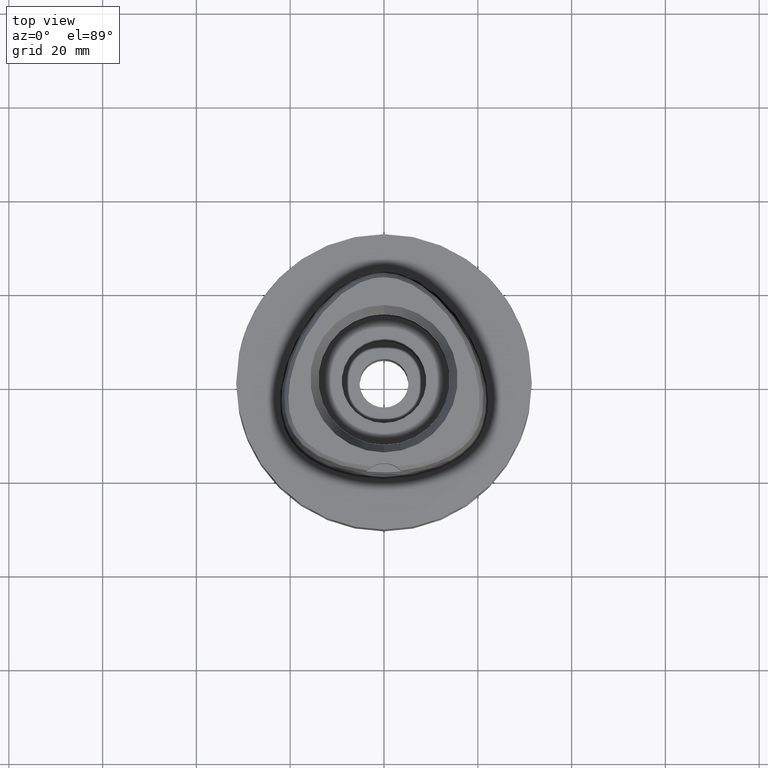
[diagram: clean part render]
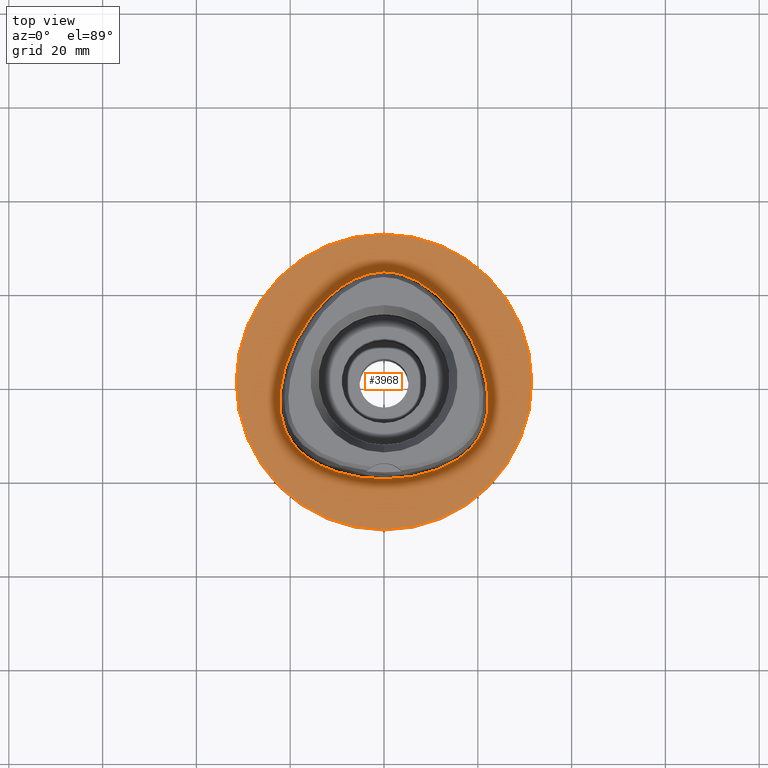
[diagram: same view with one face highlighted and labeled with its STEP entity id]
A machine part, top view. The second image highlights one B-rep face of the part: STEP entity #3968.
In plain terms, the highlighted planar face has unit normal (0, 0, -1).
Its self-contained STEP definition (entity closure, byte-faithful):
#9 = VERTEX_POINT ( 'NONE', #2866 ) ;
#31 = AXIS2_PLACEMENT_3D ( 'NONE', #2829, #2016, #115 ) ;
#85 = DIRECTION ( 'NONE',  ( 0.0000000000000000000, 0.0000000000000000000, -1.000000000000000000 ) ) ;
#89 = CARTESIAN_POINT ( 'NONE',  ( -1.131694588379999952E-11, -20.67499999999999716, 1.488068927338999721E-13 ) ) ;
#98 = EDGE_LOOP ( 'NONE', ( #3876, #235 ) ) ;
#115 = DIRECTION ( 'NONE',  ( 0.0000000000000000000, -1.000000000000000000, 0.0000000000000000000 ) ) ;
#136 = CARTESIAN_POINT ( 'NONE',  ( -22.05732873356693347, -6.847636717361496927, 3.885600670697989673E-07 ) ) ;
#160 = CARTESIAN_POINT ( 'NONE',  ( -2.564517724960374778, 23.29328124043638581, 3.885600670697989673E-07 ) ) ;
#194 = CARTESIAN_POINT ( 'NONE',  ( 14.40795639674408868, 15.64093750605300848, -3.727169554164789372E-07 ) ) ;
#216 = CARTESIAN_POINT ( 'NONE',  ( 19.64947366619033886, -12.82525391174291940, -3.727169554164789372E-07 ) ) ;
#235 = ORIENTED_EDGE ( 'NONE', *, *, #3842, .F. ) ;
#297 = EDGE_CURVE ( 'NONE', #9, #627, #1246, .T. ) ;
#439 = DIRECTION ( 'NONE',  ( 0.0000000000000000000, 1.000000000000000000, 0.0000000000000000000 ) ) ;
#506 = CARTESIAN_POINT ( 'NONE',  ( -20.74942739960216542, 4.657187496688254491, 3.885600670697989673E-07 ) ) ;
#594 = CARTESIAN_POINT ( 'NONE',  ( -1.131694588379999952E-11, -20.67499999999999716, 1.488068927338999721E-13 ) ) ;
#627 = VERTEX_POINT ( 'NONE', #2481 ) ;
#641 = CARTESIAN_POINT ( 'NONE',  ( 20.74942741761695686, 4.657187503176337451, -3.727169554164789372E-07 ) ) ;
#663 = EDGE_CURVE ( 'NONE', #627, #9, #2689, .T. ) ;
#904 = PLANE ( 'NONE',  #31 ) ;
#917 = CARTESIAN_POINT ( 'NONE',  ( -5.098437013657345140, 22.52602538157566059, 3.885600670697989673E-07 ) ) ;
#949 = CARTESIAN_POINT ( 'NONE',  ( -6.341471017485521777, -20.29812499039378793, 3.885600670697989673E-07 ) ) ;
#963 = CARTESIAN_POINT ( 'NONE',  ( 22.24453908789068279, -4.100468749944812252, -3.727169554164789372E-07 ) ) ;
#979 = CARTESIAN_POINT ( 'NONE',  ( 0.8548392429687943217, 23.47500000932142683, -3.727169554164789372E-07 ) ) ;
#985 = CARTESIAN_POINT ( 'NONE',  ( -14.40795638211908880, 15.64093749369347641, 3.885600670697989673E-07 ) ) ;
#1026 = CARTESIAN_POINT ( 'NONE',  ( 18.56841065820153602, -14.16937988923751668, -3.727169554164789372E-07 ) ) ;
#1061 = EDGE_CURVE ( 'NONE', #2338, #3992, #2026, .T. ) ;
#1246 = CIRCLE ( 'NONE', #4455, 31.50000000000000000 ) ;
#1287 = CARTESIAN_POINT ( 'NONE',  ( -18.56841064434376065, -14.16937987611206751, 3.885600670697989673E-07 ) ) ;
#1305 = CARTESIAN_POINT ( 'NONE',  ( -19.64947365076566754, -12.82525390053001679, 3.885600670697989673E-07 ) ) ;
#1311 = ORIENTED_EDGE ( 'NONE', *, *, #663, .F. ) ;
#1348 = CARTESIAN_POINT ( 'NONE',  ( 10.74572891661287422, 19.17433594467898317, -3.727169554164789372E-07 ) ) ;
#1441 = CARTESIAN_POINT ( 'NONE',  ( 20.93173253064228589, -10.60431641004089087, -3.727169554164789372E-07 ) ) ;
#1661 = CARTESIAN_POINT ( 'NONE',  ( -21.55524825074957107, -8.996025387848247235, 3.885600670697989673E-07 ) ) ;
#1875 = AXIS2_PLACEMENT_3D ( 'NONE', #3031, #3754, #4542 ) ;
#2016 = DIRECTION ( 'NONE',  ( 0.0000000000000000000, 0.0000000000000000000, -1.000000000000000000 ) ) ;
#2026 = B_SPLINE_CURVE_WITH_KNOTS ( 'NONE', 3,
 ( #3610, #3631, #160, #917, #3586, #2109, #985, #3204, #506, #2512, #4774, #136, #1661, #4753, #4438, #1305, #1287, #2821, #4366, #4060, #949, #2450, #3990 ),
 .UNSPECIFIED., .F., .F.,
 ( 4, 1, 1, 1, 1, 1, 1, 1, 1, 1, 1, 1, 1, 1, 1, 1, 1, 1, 1, 1, 4 ),
 ( 0.0000000000000000000, 0.04166666666755999837, 0.08333333333417000666, 0.1250000000007999990, 0.1666666666674000152, 0.2500000000006000200, 0.3333333333337999971, 0.4166666666671000052, 0.5000000000004000134, 0.5416666666670000296, 0.5833333333336000459, 0.6250000000001999512, 0.6458333333335000148, 0.6666666666668999985, 0.6875000000001000311, 0.7083333333333999837, 0.7500000000001000311, 0.7916666666667000474, 0.8333333333333000637, 0.9166666666666000163, 1.000000000000000000 ),
 .UNSPECIFIED. ) ;
#2109 = CARTESIAN_POINT ( 'NONE',  ( -10.74572890431623406, 19.17433593002142800, 3.885600670697989673E-07 ) ) ;
#2131 = CARTESIAN_POINT ( 'NONE',  ( 6.341471020867912145, -20.29812500922345819, -3.727169554164789372E-07 ) ) ;
#2181 = CARTESIAN_POINT ( 'NONE',  ( 5.098437020761553029, 22.52602539931565673, -3.727169554164789372E-07 ) ) ;
#2338 = VERTEX_POINT ( 'NONE', #2792 ) ;
#2450 = CARTESIAN_POINT ( 'NONE',  ( -2.113823672487484373, -20.67499999028822799, 3.885600670697989673E-07 ) ) ;
#2481 = CARTESIAN_POINT ( 'NONE',  ( 0.0000000000000000000, -31.50000000000000000, 0.0000000000000000000 ) ) ;
#2489 = CARTESIAN_POINT ( 'NONE',  ( 7.571159439071173836, 21.31457032055926248, -3.727169554164789372E-07 ) ) ;
#2512 = CARTESIAN_POINT ( 'NONE',  ( -21.97832646824619829, -0.2810937516994880814, 3.885600670697989673E-07 ) ) ;
#2557 = CARTESIAN_POINT ( 'NONE',  ( 21.55524826905910274, -8.996025393288993754, -3.727169554164789372E-07 ) ) ;
#2578 = CARTESIAN_POINT ( 'NONE',  ( 20.34961799365099466, -11.74885742654150533, -3.727169554164789372E-07 ) ) ;
#2689 = CIRCLE ( 'NONE', #1875, 31.50000000000000000 ) ;
#2792 = CARTESIAN_POINT ( 'NONE',  ( 5.792640471420000553E-11, 23.47499999999000053, 1.459943277381999819E-13 ) ) ;
#2821 = CARTESIAN_POINT ( 'NONE',  ( -16.95889171990959809, -15.67838866420374266, 3.885600670697989673E-07 ) ) ;
#2829 = CARTESIAN_POINT ( 'NONE',  ( 0.0000000000000000000, 1.224646799146999965E-14, 0.0000000000000000000 ) ) ;
#2866 = CARTESIAN_POINT ( 'NONE',  ( 0.0000000000000000000, 31.50000000000000000, 0.0000000000000000000 ) ) ;
#2882 = B_SPLINE_CURVE_WITH_KNOTS ( 'NONE', 3,
 ( #594, #3366, #2131, #4915, #3668, #4079, #1026, #216, #2578, #1441, #2557, #4100, #963, #4817, #641, #3643, #194, #1348, #2489, #2181, #4889, #979, #3711 ),
 .UNSPECIFIED., .F., .F.,
 ( 4, 1, 1, 1, 1, 1, 1, 1, 1, 1, 1, 1, 1, 1, 1, 1, 1, 1, 1, 1, 4 ),
 ( 0.0000000000000000000, 0.08333333333344000726, 0.1666666666668000230, 0.2083333333333000081, 0.2500000000000000000, 0.2916666666666999919, 0.3125000000000000000, 0.3333333333333000081, 0.3541666666666999919, 0.3750000000000000000, 0.4166666666666000163, 0.4583333333332000326, 0.4999999999998999689, 0.5833333333332000326, 0.6666666666664999852, 0.7499999999998000488, 0.8333333333329999704, 0.8749999999997000177, 0.9166666666664000651, 0.9583333333329999704, 1.000000000000000000 ),
 .UNSPECIFIED. ) ;
#3031 = CARTESIAN_POINT ( 'NONE',  ( 0.0000000000000000000, 1.275653338331999844E-14, 0.0000000000000000000 ) ) ;
#3204 = CARTESIAN_POINT ( 'NONE',  ( -18.06826687681904176, 10.43171874512409936, 3.885600670697989673E-07 ) ) ;
#3366 = CARTESIAN_POINT ( 'NONE',  ( 2.113823673620303989, -20.67500000931492821, -3.727169554164789372E-07 ) ) ;
#3541 = CARTESIAN_POINT ( 'NONE',  ( 0.0000000000000000000, 1.275653338331999844E-14, 0.0000000000000000000 ) ) ;
#3546 = FACE_BOUND ( 'NONE', #98, .T. ) ;
#3586 = CARTESIAN_POINT ( 'NONE',  ( -7.571159429429436649, 21.31457030409382014, 3.885600670697989673E-07 ) ) ;
#3610 = CARTESIAN_POINT ( 'NONE',  ( 5.792640471420000553E-11, 23.47499999999000053, 1.459943277381999819E-13 ) ) ;
#3631 = CARTESIAN_POINT ( 'NONE',  ( -0.8548392416113345105, 23.47499999029279394, 3.885600670697989673E-07 ) ) ;
#3643 = CARTESIAN_POINT ( 'NONE',  ( 18.06826689337374603, 10.43171875469033338, -3.727169554164789372E-07 ) ) ;
#3668 = CARTESIAN_POINT ( 'NONE',  ( 14.67337964882495527, -17.21410157061511370, -3.727169554164789372E-07 ) ) ;
#3711 = CARTESIAN_POINT ( 'NONE',  ( 5.792640471420000553E-11, 23.47499999999000053, 1.459943277381999819E-13 ) ) ;
#3754 = DIRECTION ( 'NONE',  ( 0.0000000000000000000, 0.0000000000000000000, -1.000000000000000000 ) ) ;
#3842 = EDGE_CURVE ( 'NONE', #3992, #2338, #2882, .T. ) ;
#3876 = ORIENTED_EDGE ( 'NONE', *, *, #1061, .F. ) ;
#3968 = ADVANCED_FACE ( 'NONE', ( #4352, #3546 ), #904, .F. ) ;
#3990 = CARTESIAN_POINT ( 'NONE',  ( -1.131694588379999952E-11, -20.67499999999999716, 1.488068927338999721E-13 ) ) ;
#3992 = VERTEX_POINT ( 'NONE', #89 ) ;
#4060 = CARTESIAN_POINT ( 'NONE',  ( -11.23259756393842501, -18.89324217832330177, 3.885600670697989673E-07 ) ) ;
#4079 = CARTESIAN_POINT ( 'NONE',  ( 16.95889173171761755, -15.67838867922683654, -3.727169554164789372E-07 ) ) ;
#4100 = CARTESIAN_POINT ( 'NONE',  ( 22.05732875248838809, -6.847636720081132111, -3.727169554164789372E-07 ) ) ;
#4352 = FACE_OUTER_BOUND ( 'NONE', #4511, .T. ) ;
#4366 = CARTESIAN_POINT ( 'NONE',  ( -14.67337963937592349, -17.21410155403621545, 3.885600670697989673E-07 ) ) ;
#4438 = CARTESIAN_POINT ( 'NONE',  ( -20.34961797713979337, -11.74885741700608222, 3.885600670697989673E-07 ) ) ;
#4455 = AXIS2_PLACEMENT_3D ( 'NONE', #3541, #85, #439 ) ;
#4511 = EDGE_LOOP ( 'NONE', ( #4951, #1311 ) ) ;
#4542 = DIRECTION ( 'NONE',  ( 0.0000000000000000000, -1.000000000000000000, 0.0000000000000000000 ) ) ;
#4753 = CARTESIAN_POINT ( 'NONE',  ( -20.93173251322428996, -10.60431640230086892, 3.885600670697989673E-07 ) ) ;
#4774 = CARTESIAN_POINT ( 'NONE',  ( -22.24453906880549425, -4.100468750057090439, 3.885600670697989673E-07 ) ) ;
#4817 = CARTESIAN_POINT ( 'NONE',  ( 21.97832648709144010, -0.2810937483697996120, -3.727169554164789372E-07 ) ) ;
#4889 = CARTESIAN_POINT ( 'NONE',  ( 2.564517728871615443, 23.29328125917631809, -3.727169554164789372E-07 ) ) ;
#4915 = CARTESIAN_POINT ( 'NONE',  ( 11.23259757047761731, -18.89324219629722279, -3.727169554164789372E-07 ) ) ;
#4951 = ORIENTED_EDGE ( 'NONE', *, *, #297, .F. ) ;